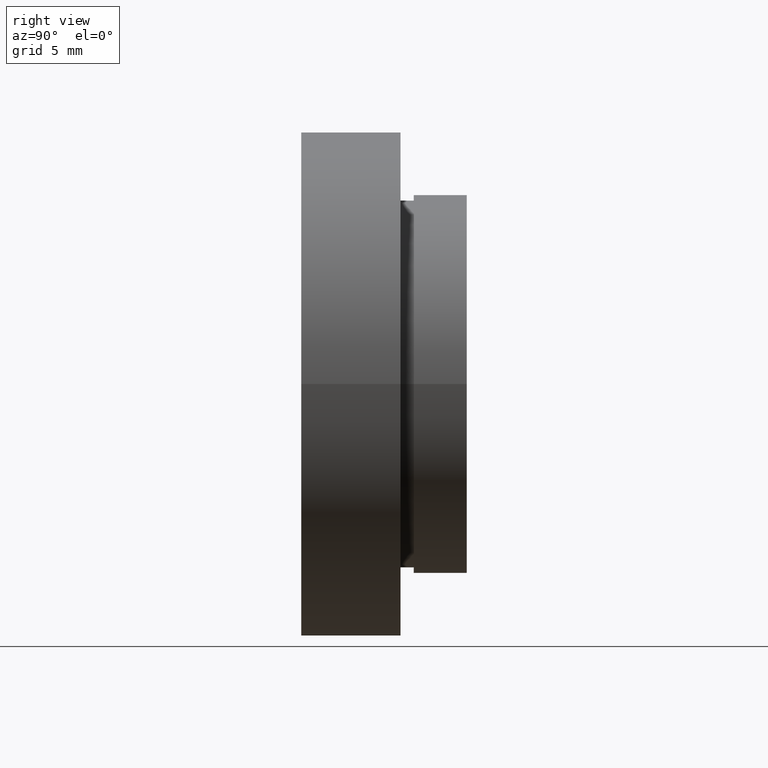
[diagram: clean part render]
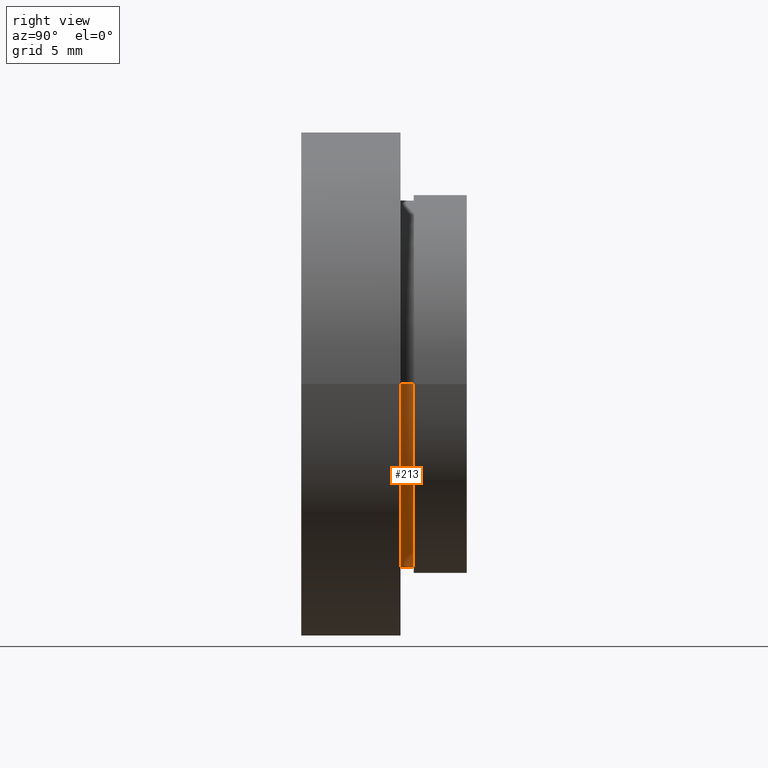
[diagram: same view with one face highlighted and labeled with its STEP entity id]
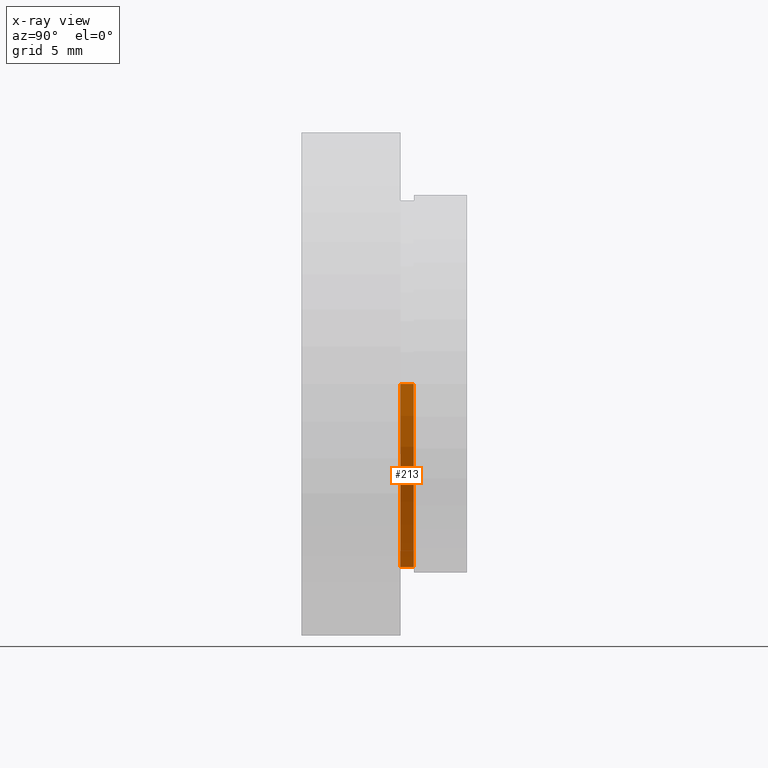
[diagram: x-ray of the same camera — body ghosted, the highlighted face saturated]
A machine part, right view. The second image highlights one B-rep face of the part: STEP entity #213.
The next image is the same camera in x-ray: the body ghosted, the highlighted face saturated — about 0% of this face is hidden behind the body in this view.
In plain terms, the highlighted cylindrical surface (partial cylindrical patch) has radius 13.85 mm, axis along (-0, 1, -0).
Its self-contained STEP definition (entity closure, byte-faithful):
#10 = DIRECTION ( 'NONE',  ( -1.224646799147351000E-016, 1.000000000000000000, -0.0000000000000000000 ) ) ;
#35 = EDGE_CURVE ( 'NONE', #177, #188, #155, .T. ) ;
#51 = CARTESIAN_POINT ( 'NONE',  ( 13.85000000000000100, 7.500000000000000000, 1.696135816819084000E-015 ) ) ;
#67 = CARTESIAN_POINT ( 'NONE',  ( -13.84999999999999800, 7.499999999999996400, 0.0000000000000000000 ) ) ;
#72 = EDGE_LOOP ( 'NONE', ( #324, #223, #158, #565 ) ) ;
#73 = CARTESIAN_POINT ( 'NONE',  ( 13.85000000000000000, 16.88601823708207700, 1.696135816819084000E-015 ) ) ;
#76 = FACE_OUTER_BOUND ( 'NONE', #72, .T. ) ;
#85 = CIRCLE ( 'NONE', #483, 13.85000000000000000 ) ;
#93 = CARTESIAN_POINT ( 'NONE',  ( 0.0000000000000000000, 16.88601823708207700, 0.0000000000000000000 ) ) ;
#95 = DIRECTION ( 'NONE',  ( -1.000000000000000000, 0.0000000000000000000, 0.0000000000000000000 ) ) ;
#103 = CARTESIAN_POINT ( 'NONE',  ( -13.85000000000000000, 16.88601823708207700, 0.0000000000000000000 ) ) ;
#126 = CIRCLE ( 'NONE', #181, 13.85000000000000000 ) ;
#139 = CARTESIAN_POINT ( 'NONE',  ( 13.85000000000000100, 8.500000000000000000, 1.696135816819084000E-015 ) ) ;
#149 = DIRECTION ( 'NONE',  ( -1.224646799147351000E-016, 1.000000000000000000, -0.0000000000000000000 ) ) ;
#155 = LINE ( 'NONE', #73, #300 ) ;
#156 = DIRECTION ( 'NONE',  ( -1.000000000000000000, -1.252507924893001600E-016, 0.0000000000000000000 ) ) ;
#158 = ORIENTED_EDGE ( 'NONE', *, *, #346, .T. ) ;
#177 = VERTEX_POINT ( 'NONE', #51 ) ;
#181 = AXIS2_PLACEMENT_3D ( 'NONE', #240, #435, #335 ) ;
#184 = LINE ( 'NONE', #103, #562 ) ;
#188 = VERTEX_POINT ( 'NONE', #139 ) ;
#197 = VERTEX_POINT ( 'NONE', #384 ) ;
#203 = DIRECTION ( 'NONE',  ( -1.224646799147351000E-016, 1.000000000000000000, -0.0000000000000000000 ) ) ;
#213 = ADVANCED_FACE ( 'NONE', ( #76 ), #366, .T. ) ;
#223 = ORIENTED_EDGE ( 'NONE', *, *, #241, .T. ) ;
#240 = CARTESIAN_POINT ( 'NONE',  ( 1.149455719078122700E-015, 7.499999999999998200, 0.0000000000000000000 ) ) ;
#241 = EDGE_CURVE ( 'NONE', #177, #443, #126, .T. ) ;
#300 = VECTOR ( 'NONE', #603, 1000.000000000000000 ) ;
#324 = ORIENTED_EDGE ( 'NONE', *, *, #35, .F. ) ;
#335 = DIRECTION ( 'NONE',  ( -1.000000000000000000, -1.252507924893001600E-016, 0.0000000000000000000 ) ) ;
#346 = EDGE_CURVE ( 'NONE', #443, #197, #184, .T. ) ;
#366 = CYLINDRICAL_SURFACE ( 'NONE', #544, 13.85000000000000000 ) ;
#384 = CARTESIAN_POINT ( 'NONE',  ( -13.84999999999999800, 8.499999999999996400, 0.0000000000000000000 ) ) ;
#386 = EDGE_CURVE ( 'NONE', #188, #197, #85, .T. ) ;
#435 = DIRECTION ( 'NONE',  ( -1.224646799147351000E-016, 1.000000000000000000, -0.0000000000000000000 ) ) ;
#443 = VERTEX_POINT ( 'NONE', #67 ) ;
#483 = AXIS2_PLACEMENT_3D ( 'NONE', #487, #203, #156 ) ;
#487 = CARTESIAN_POINT ( 'NONE',  ( 1.026991039163387700E-015, 8.499999999999998200, 0.0000000000000000000 ) ) ;
#544 = AXIS2_PLACEMENT_3D ( 'NONE', #93, #149, #95 ) ;
#562 = VECTOR ( 'NONE', #10, 1000.000000000000000 ) ;
#565 = ORIENTED_EDGE ( 'NONE', *, *, #386, .F. ) ;
#603 = DIRECTION ( 'NONE',  ( -1.224646799147351000E-016, 1.000000000000000000, -0.0000000000000000000 ) ) ;